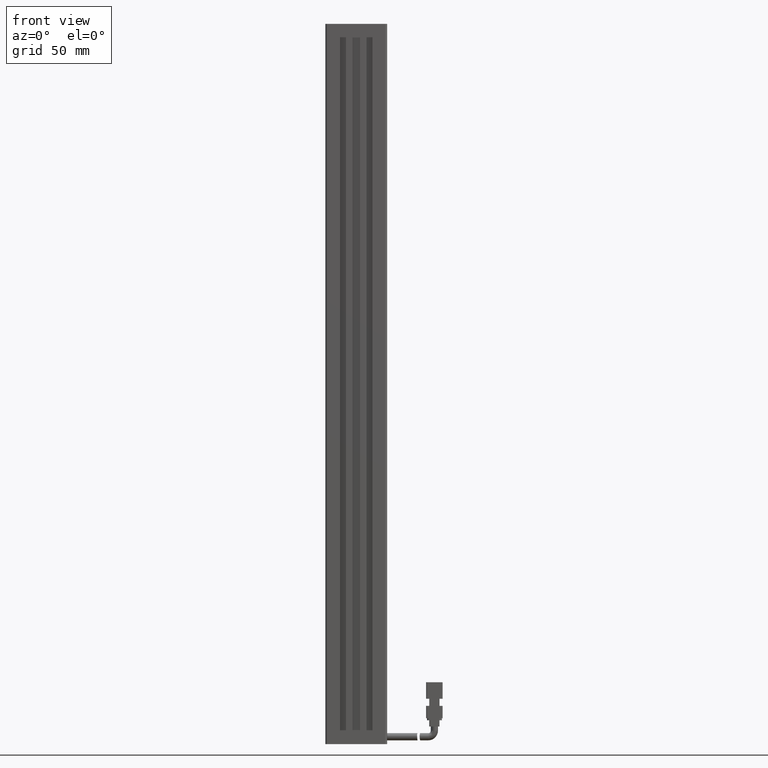
[diagram: clean part render]
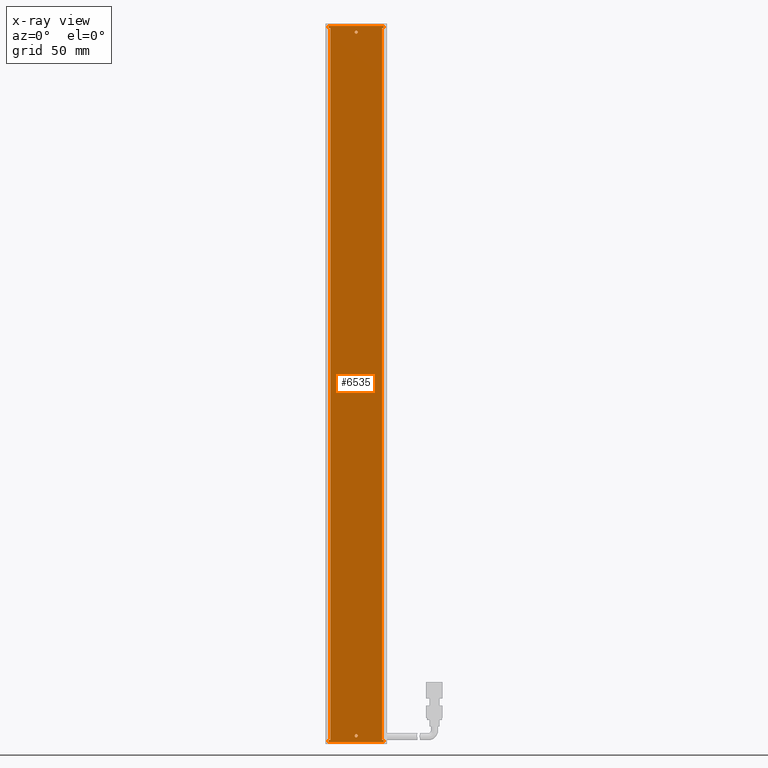
[diagram: x-ray — body ghosted, one internal face saturated and labeled with its STEP entity id]
A machine part, front view, then the same camera in x-ray: the body is ghosted and one INTERNAL B-rep face — a face not visible from any outside direction — is saturated and labeled: STEP entity #6535.
In plain terms, the highlighted planar face has unit normal (-0, 1, 0).
Its self-contained STEP definition (entity closure, byte-faithful):
#230 = VERTEX_POINT ( 'NONE', #9403 ) ;
#615 = EDGE_CURVE ( 'NONE', #971, #44878, #4686, .T. ) ;
#789 = ORIENTED_EDGE ( 'NONE', *, *, #15993, .F. ) ;
#842 = EDGE_CURVE ( 'NONE', #8838, #56266, #44582, .T. ) ;
#971 = VERTEX_POINT ( 'NONE', #44192 ) ;
#2081 = ORIENTED_EDGE ( 'NONE', *, *, #9667, .F. ) ;
#2112 = DIRECTION ( 'NONE',  ( 1.000000000000000000, 0.0000000000000000000, -5.551115123125781500E-017 ) ) ;
#2377 = EDGE_CURVE ( 'NONE', #37211, #40479, #57877, .T. ) ;
#4201 = CIRCLE ( 'NONE', #9738, 0.7499999999999729100 ) ;
#4578 = VECTOR ( 'NONE', #10749, 1000.000000000000000 ) ;
#4686 = CIRCLE ( 'NONE', #7276, 0.7500000000000006700 ) ;
#5657 = DIRECTION ( 'NONE',  ( 5.551115123125781500E-017, 0.0000000000000000000, 1.000000000000000000 ) ) ;
#5860 = VECTOR ( 'NONE', #36573, 1000.000000000000000 ) ;
#6002 = CARTESIAN_POINT ( 'NONE',  ( 40.92537974683536100, 32.19594479660386100, -286.0000000000000000 ) ) ;
#6125 = ORIENTED_EDGE ( 'NONE', *, *, #55055, .F. ) ;
#6535 = ADVANCED_FACE ( 'NONE', ( #58070, #59751, #44257 ), #29172, .F. ) ;
#6834 = CARTESIAN_POINT ( 'NONE',  ( 27.52537974683538000, 32.19594479660386100, 59.00000000000005000 ) ) ;
#7276 = AXIS2_PLACEMENT_3D ( 'NONE', #42516, #11325, #47768 ) ;
#7307 = CIRCLE ( 'NONE', #20878, 0.7500000000000006700 ) ;
#7577 = CARTESIAN_POINT ( 'NONE',  ( 40.92537974683542500, 32.19594479660386800, 58.00000000000000700 ) ) ;
#8058 = EDGE_CURVE ( 'NONE', #18962, #8838, #19763, .T. ) ;
#8838 = VERTEX_POINT ( 'NONE', #32816 ) ;
#9043 = VERTEX_POINT ( 'NONE', #41246 ) ;
#9267 = CARTESIAN_POINT ( 'NONE',  ( 40.92537974683542500, 32.19594479660386800, -288.0000000000000600 ) ) ;
#9403 = CARTESIAN_POINT ( 'NONE',  ( 27.52537974683535900, 32.19594479660386800, -288.0000000000000600 ) ) ;
#9667 = EDGE_CURVE ( 'NONE', #40479, #15597, #59197, .T. ) ;
#9738 = AXIS2_PLACEMENT_3D ( 'NONE', #61974, #30774, #67202 ) ;
#10749 = DIRECTION ( 'NONE',  ( 1.000000000000000000, -0.0000000000000000000, 0.0000000000000000000 ) ) ;
#11270 = DIRECTION ( 'NONE',  ( 0.0000000000000000000, 0.0000000000000000000, 1.000000000000000000 ) ) ;
#11325 = DIRECTION ( 'NONE',  ( -0.0000000000000000000, -1.000000000000000000, -0.0000000000000000000 ) ) ;
#11376 = ORIENTED_EDGE ( 'NONE', *, *, #44181, .F. ) ;
#11574 = EDGE_LOOP ( 'NONE', ( #22249, #45766 ) ) ;
#12085 = EDGE_CURVE ( 'NONE', #44878, #971, #7307, .T. ) ;
#12779 = LINE ( 'NONE', #36721, #4578 ) ;
#13077 = DIRECTION ( 'NONE',  ( 1.000000000000000000, 0.0000000000000000000, -0.0000000000000000000 ) ) ;
#13383 = EDGE_CURVE ( 'NONE', #26869, #230, #15075, .T. ) ;
#13388 = LINE ( 'NONE', #42102, #65569 ) ;
#13795 = LINE ( 'NONE', #67393, #41473 ) ;
#15075 = LINE ( 'NONE', #9267, #27278 ) ;
#15597 = VERTEX_POINT ( 'NONE', #23914 ) ;
#15993 = EDGE_CURVE ( 'NONE', #16322, #49851, #60088, .T. ) ;
#16322 = VERTEX_POINT ( 'NONE', #34935 ) ;
#17585 = CARTESIAN_POINT ( 'NONE',  ( 54.32537974683541600, 32.19594479660386100, 59.00000000000005000 ) ) ;
#18820 = EDGE_CURVE ( 'NONE', #9043, #18962, #13388, .T. ) ;
#18884 = DIRECTION ( 'NONE',  ( -0.0000000000000000000, 1.000000000000000000, 0.0000000000000000000 ) ) ;
#18962 = VERTEX_POINT ( 'NONE', #28230 ) ;
#19249 = VECTOR ( 'NONE', #35921, 1000.000000000000000 ) ;
#19449 = CARTESIAN_POINT ( 'NONE',  ( 40.92537974683536100, 32.19594479660386100, -285.2500000000000000 ) ) ;
#19763 = LINE ( 'NONE', #41568, #5860 ) ;
#20325 = ORIENTED_EDGE ( 'NONE', *, *, #44677, .F. ) ;
#20685 = CARTESIAN_POINT ( 'NONE',  ( 27.52537974683538000, 32.19594479660386100, 59.00000000000005000 ) ) ;
#20878 = AXIS2_PLACEMENT_3D ( 'NONE', #59521, #28323, #64810 ) ;
#21471 = EDGE_CURVE ( 'NONE', #59595, #15597, #12779, .T. ) ;
#22084 = CARTESIAN_POINT ( 'NONE',  ( 28.42537974683542100, 32.19594479660386800, -288.0000000000000600 ) ) ;
#22249 = ORIENTED_EDGE ( 'NONE', *, *, #12085, .F. ) ;
#23027 = CARTESIAN_POINT ( 'NONE',  ( 27.52537974683535900, 32.19594479660386100, -289.0000000000000000 ) ) ;
#23914 = CARTESIAN_POINT ( 'NONE',  ( 54.32537974683541600, 32.19594479660386100, 58.00000000000000700 ) ) ;
#24231 = VERTEX_POINT ( 'NONE', #55165 ) ;
#25414 = LINE ( 'NONE', #7577, #65353 ) ;
#26711 = EDGE_CURVE ( 'NONE', #49851, #16322, #4201, .T. ) ;
#26869 = VERTEX_POINT ( 'NONE', #22084 ) ;
#27278 = VECTOR ( 'NONE', #50967, 1000.000000000000000 ) ;
#27627 = EDGE_LOOP ( 'NONE', ( #39313, #11376, #59355, #2081, #58480, #6125, #39291, #29590, #57949, #20325, #53933, #44853 ) ) ;
#28230 = CARTESIAN_POINT ( 'NONE',  ( 54.32537974683540200, 32.19594479660386100, -288.0000000000000600 ) ) ;
#28323 = DIRECTION ( 'NONE',  ( -0.0000000000000000000, -1.000000000000000000, -0.0000000000000000000 ) ) ;
#29172 = PLANE ( 'NONE',  #64460 ) ;
#29408 = LINE ( 'NONE', #20685, #57091 ) ;
#29590 = ORIENTED_EDGE ( 'NONE', *, *, #61650, .T. ) ;
#30193 = VECTOR ( 'NONE', #2112, 1000.000000000000000 ) ;
#30702 = CARTESIAN_POINT ( 'NONE',  ( 54.32537974683541600, 32.19594479660386100, 59.00000000000005000 ) ) ;
#30774 = DIRECTION ( 'NONE',  ( -0.0000000000000000000, -1.000000000000000000, -0.0000000000000000000 ) ) ;
#32816 = CARTESIAN_POINT ( 'NONE',  ( 54.32537974683537400, 32.19594479660386100, -289.0000000000000000 ) ) ;
#33231 = CARTESIAN_POINT ( 'NONE',  ( 53.42537974683542500, 32.19594479660386800, 58.00000000000000700 ) ) ;
#33372 = CARTESIAN_POINT ( 'NONE',  ( 54.32537974683541600, 32.19594479660386100, 59.00000000000005000 ) ) ;
#34086 = CARTESIAN_POINT ( 'NONE',  ( 54.32537974683540900, 32.19594479660386100, -289.0000000000000000 ) ) ;
#34935 = CARTESIAN_POINT ( 'NONE',  ( 40.92537974683536100, 32.19594479660386100, -286.7499999999999400 ) ) ;
#34947 = VECTOR ( 'NONE', #5657, 1000.000000000000000 ) ;
#35921 = DIRECTION ( 'NONE',  ( -5.551115123125781500E-017, -0.0000000000000000000, -1.000000000000000000 ) ) ;
#36176 = DIRECTION ( 'NONE',  ( -0.0000000000000000000, -0.0000000000000000000, -1.000000000000000000 ) ) ;
#36573 = DIRECTION ( 'NONE',  ( -5.551115123125781500E-017, -0.0000000000000000000, -1.000000000000000000 ) ) ;
#36721 = CARTESIAN_POINT ( 'NONE',  ( 25.92537974683541800, 32.19594479660386100, 58.00000000000000700 ) ) ;
#37211 = VERTEX_POINT ( 'NONE', #60512 ) ;
#38506 = EDGE_LOOP ( 'NONE', ( #43938, #789 ) ) ;
#38585 = VERTEX_POINT ( 'NONE', #64708 ) ;
#39291 = ORIENTED_EDGE ( 'NONE', *, *, #64881, .T. ) ;
#39313 = ORIENTED_EDGE ( 'NONE', *, *, #18820, .F. ) ;
#39539 = AXIS2_PLACEMENT_3D ( 'NONE', #6002, #42461, #11270 ) ;
#39906 = VECTOR ( 'NONE', #58849, 1000.000000000000000 ) ;
#40479 = VERTEX_POINT ( 'NONE', #33372 ) ;
#41246 = CARTESIAN_POINT ( 'NONE',  ( 53.42537974683542500, 32.19594479660386100, -288.0000000000000600 ) ) ;
#41396 = DIRECTION ( 'NONE',  ( 5.551115123125781500E-017, 0.0000000000000000000, 1.000000000000000000 ) ) ;
#41452 = DIRECTION ( 'NONE',  ( 1.000000000000000000, 0.0000000000000000000, 0.0000000000000000000 ) ) ;
#41473 = VECTOR ( 'NONE', #36176, 1000.000000000000000 ) ;
#41568 = CARTESIAN_POINT ( 'NONE',  ( 54.32537974683541600, 32.19594479660386100, 59.00000000000005000 ) ) ;
#42102 = CARTESIAN_POINT ( 'NONE',  ( 40.92537974683542500, 32.19594479660386800, -288.0000000000000600 ) ) ;
#42461 = DIRECTION ( 'NONE',  ( -0.0000000000000000000, -1.000000000000000000, -0.0000000000000000000 ) ) ;
#42516 = CARTESIAN_POINT ( 'NONE',  ( 40.92537974683541800, 32.19594479660386100, 56.00000000000005000 ) ) ;
#43938 = ORIENTED_EDGE ( 'NONE', *, *, #26711, .F. ) ;
#44181 = EDGE_CURVE ( 'NONE', #59595, #9043, #55395, .T. ) ;
#44192 = CARTESIAN_POINT ( 'NONE',  ( 40.92537974683541800, 32.19594479660386100, 55.25000000000005000 ) ) ;
#44257 = FACE_BOUND ( 'NONE', #38506, .T. ) ;
#44582 = LINE ( 'NONE', #34086, #56789 ) ;
#44677 = EDGE_CURVE ( 'NONE', #56266, #230, #48808, .T. ) ;
#44853 = ORIENTED_EDGE ( 'NONE', *, *, #8058, .F. ) ;
#44878 = VERTEX_POINT ( 'NONE', #60610 ) ;
#45766 = ORIENTED_EDGE ( 'NONE', *, *, #615, .F. ) ;
#47768 = DIRECTION ( 'NONE',  ( 0.0000000000000000000, 0.0000000000000000000, 1.000000000000000000 ) ) ;
#48373 = CARTESIAN_POINT ( 'NONE',  ( 53.42537974683542500, 32.19594479660386800, 60.00000000000001400 ) ) ;
#48808 = LINE ( 'NONE', #6834, #34947 ) ;
#49851 = VERTEX_POINT ( 'NONE', #19449 ) ;
#50111 = CARTESIAN_POINT ( 'NONE',  ( 54.32537974683541600, 32.19594479660386100, 59.00000000000005000 ) ) ;
#50967 = DIRECTION ( 'NONE',  ( -1.000000000000000000, -0.0000000000000000000, 0.0000000000000000000 ) ) ;
#53933 = ORIENTED_EDGE ( 'NONE', *, *, #842, .F. ) ;
#55055 = EDGE_CURVE ( 'NONE', #38585, #37211, #29408, .T. ) ;
#55165 = CARTESIAN_POINT ( 'NONE',  ( 28.42537974683542100, 32.19594479660386100, 58.00000000000000700 ) ) ;
#55343 = DIRECTION ( 'NONE',  ( 5.551115123125781500E-017, 0.0000000000000000000, 1.000000000000000000 ) ) ;
#55395 = LINE ( 'NONE', #48373, #39906 ) ;
#56266 = VERTEX_POINT ( 'NONE', #23027 ) ;
#56789 = VECTOR ( 'NONE', #60073, 1000.000000000000000 ) ;
#57091 = VECTOR ( 'NONE', #41396, 1000.000000000000000 ) ;
#57877 = LINE ( 'NONE', #17585, #30193 ) ;
#57949 = ORIENTED_EDGE ( 'NONE', *, *, #13383, .T. ) ;
#58070 = FACE_OUTER_BOUND ( 'NONE', #27627, .T. ) ;
#58480 = ORIENTED_EDGE ( 'NONE', *, *, #2377, .F. ) ;
#58849 = DIRECTION ( 'NONE',  ( -0.0000000000000000000, -0.0000000000000000000, -1.000000000000000000 ) ) ;
#59197 = LINE ( 'NONE', #30702, #19249 ) ;
#59355 = ORIENTED_EDGE ( 'NONE', *, *, #21471, .T. ) ;
#59521 = CARTESIAN_POINT ( 'NONE',  ( 40.92537974683541800, 32.19594479660386100, 56.00000000000005000 ) ) ;
#59595 = VERTEX_POINT ( 'NONE', #33231 ) ;
#59751 = FACE_BOUND ( 'NONE', #11574, .T. ) ;
#60073 = DIRECTION ( 'NONE',  ( -1.000000000000000000, -0.0000000000000000000, 5.551115123125781500E-017 ) ) ;
#60088 = CIRCLE ( 'NONE', #39539, 0.7499999999999729100 ) ;
#60512 = CARTESIAN_POINT ( 'NONE',  ( 27.52537974683541200, 32.19594479660386100, 59.00000000000005000 ) ) ;
#60610 = CARTESIAN_POINT ( 'NONE',  ( 40.92537974683541800, 32.19594479660386100, 56.75000000000005000 ) ) ;
#61650 = EDGE_CURVE ( 'NONE', #24231, #26869, #13795, .T. ) ;
#61974 = CARTESIAN_POINT ( 'NONE',  ( 40.92537974683536100, 32.19594479660386100, -286.0000000000000000 ) ) ;
#64460 = AXIS2_PLACEMENT_3D ( 'NONE', #50111, #18884, #55343 ) ;
#64708 = CARTESIAN_POINT ( 'NONE',  ( 27.52537974683535900, 32.19594479660386800, 58.00000000000000700 ) ) ;
#64810 = DIRECTION ( 'NONE',  ( 0.0000000000000000000, 0.0000000000000000000, 1.000000000000000000 ) ) ;
#64881 = EDGE_CURVE ( 'NONE', #38585, #24231, #25414, .T. ) ;
#65353 = VECTOR ( 'NONE', #13077, 1000.000000000000000 ) ;
#65569 = VECTOR ( 'NONE', #41452, 1000.000000000000000 ) ;
#67202 = DIRECTION ( 'NONE',  ( 0.0000000000000000000, 0.0000000000000000000, 1.000000000000000000 ) ) ;
#67393 = CARTESIAN_POINT ( 'NONE',  ( 28.42537974683542100, 32.19594479660386800, 60.00000000000001400 ) ) ;